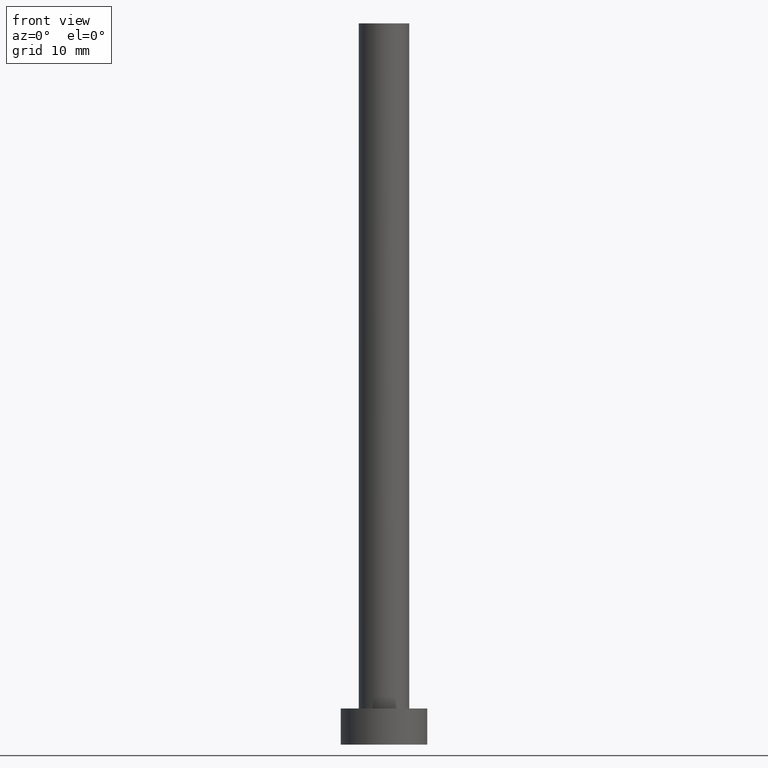
[diagram: clean part render]
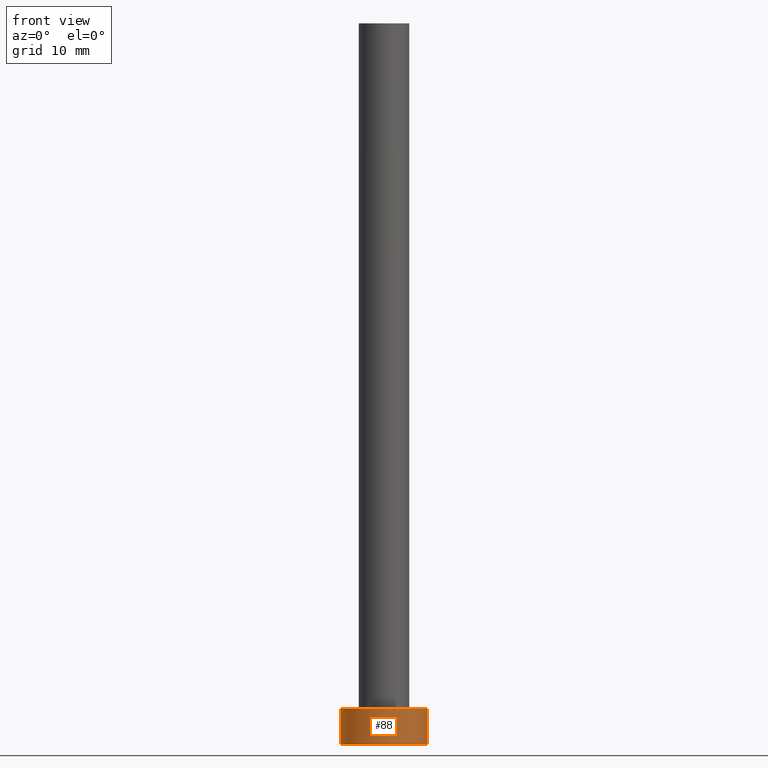
[diagram: same view with one face highlighted and labeled with its STEP entity id]
A machine part, front view. The second image highlights one B-rep face of the part: STEP entity #88.
In plain terms, the highlighted cylindrical surface (partial cylindrical patch) has radius 6 mm, axis along (-0, -0, -1).
Its self-contained STEP definition (entity closure, byte-faithful):
#15 = CARTESIAN_POINT ( 'NONE',  ( -6.000000000000000888, 0.000000000000000000, 5.000000000000000000 ) ) ;
#27 = AXIS2_PLACEMENT_3D ( 'NONE', #148, #226, #109 ) ;
#40 = EDGE_CURVE ( 'NONE', #100, #69, #131, .T. ) ;
#57 = DIRECTION ( 'NONE',  ( -1.000000000000000000, 0.000000000000000000, 0.000000000000000000 ) ) ;
#58 = FACE_OUTER_BOUND ( 'NONE', #182, .T. ) ;
#65 = ORIENTED_EDGE ( 'NONE', *, *, #181, .T. ) ;
#67 = EDGE_CURVE ( 'NONE', #225, #69, #193, .T. ) ;
#69 = VERTEX_POINT ( 'NONE', #150 ) ;
#72 = DIRECTION ( 'NONE',  ( -0.000000000000000000, -0.000000000000000000, -1.000000000000000000 ) ) ;
#73 = CARTESIAN_POINT ( 'NONE',  ( -6.000000000000000888, 0.000000000000000000, 0.000000000000000000 ) ) ;
#79 = DIRECTION ( 'NONE',  ( 0.000000000000000000, 0.000000000000000000, 1.000000000000000000 ) ) ;
#83 = ORIENTED_EDGE ( 'NONE', *, *, #197, .F. ) ;
#88 = ADVANCED_FACE ( 'NONE', ( #58 ), #229, .T. ) ;
#100 = VERTEX_POINT ( 'NONE', #154 ) ;
#109 = DIRECTION ( 'NONE',  ( 1.000000000000000000, 0.000000000000000000, 0.000000000000000000 ) ) ;
#114 = DIRECTION ( 'NONE',  ( -0.000000000000000000, -0.000000000000000000, -1.000000000000000000 ) ) ;
#122 = VERTEX_POINT ( 'NONE', #235 ) ;
#131 = LINE ( 'NONE', #145, #151 ) ;
#132 = DIRECTION ( 'NONE',  ( -0.000000000000000000, -0.000000000000000000, -1.000000000000000000 ) ) ;
#133 = LINE ( 'NONE', #15, #185 ) ;
#137 = CIRCLE ( 'NONE', #27, 6.000000000000000888 ) ;
#145 = CARTESIAN_POINT ( 'NONE',  ( 6.000000000000000888, 7.347880794884120722E-16, 5.000000000000000000 ) ) ;
#147 = ORIENTED_EDGE ( 'NONE', *, *, #67, .T. ) ;
#148 = CARTESIAN_POINT ( 'NONE',  ( 0.000000000000000000, 0.000000000000000000, 5.000000000000000000 ) ) ;
#150 = CARTESIAN_POINT ( 'NONE',  ( 6.000000000000000888, 7.347880794884120722E-16, 0.000000000000000000 ) ) ;
#151 = VECTOR ( 'NONE', #72, 1000.000000000000000 ) ;
#154 = CARTESIAN_POINT ( 'NONE',  ( 6.000000000000000888, 7.347880794884120722E-16, 5.000000000000000000 ) ) ;
#170 = AXIS2_PLACEMENT_3D ( 'NONE', #175, #79, #209 ) ;
#175 = CARTESIAN_POINT ( 'NONE',  ( 0.000000000000000000, 0.000000000000000000, 0.000000000000000000 ) ) ;
#181 = EDGE_CURVE ( 'NONE', #122, #225, #133, .T. ) ;
#182 = EDGE_LOOP ( 'NONE', ( #217, #83, #65, #147 ) ) ;
#185 = VECTOR ( 'NONE', #132, 1000.000000000000000 ) ;
#188 = AXIS2_PLACEMENT_3D ( 'NONE', #211, #114, #57 ) ;
#193 = CIRCLE ( 'NONE', #170, 6.000000000000000888 ) ;
#197 = EDGE_CURVE ( 'NONE', #122, #100, #137, .T. ) ;
#209 = DIRECTION ( 'NONE',  ( 1.000000000000000000, 0.000000000000000000, 0.000000000000000000 ) ) ;
#211 = CARTESIAN_POINT ( 'NONE',  ( 0.000000000000000000, 0.000000000000000000, 5.000000000000000000 ) ) ;
#217 = ORIENTED_EDGE ( 'NONE', *, *, #40, .F. ) ;
#225 = VERTEX_POINT ( 'NONE', #73 ) ;
#226 = DIRECTION ( 'NONE',  ( 0.000000000000000000, 0.000000000000000000, 1.000000000000000000 ) ) ;
#229 = CYLINDRICAL_SURFACE ( 'NONE', #188, 6.000000000000000888 ) ;
#235 = CARTESIAN_POINT ( 'NONE',  ( -6.000000000000000888, 0.000000000000000000, 5.000000000000000000 ) ) ;